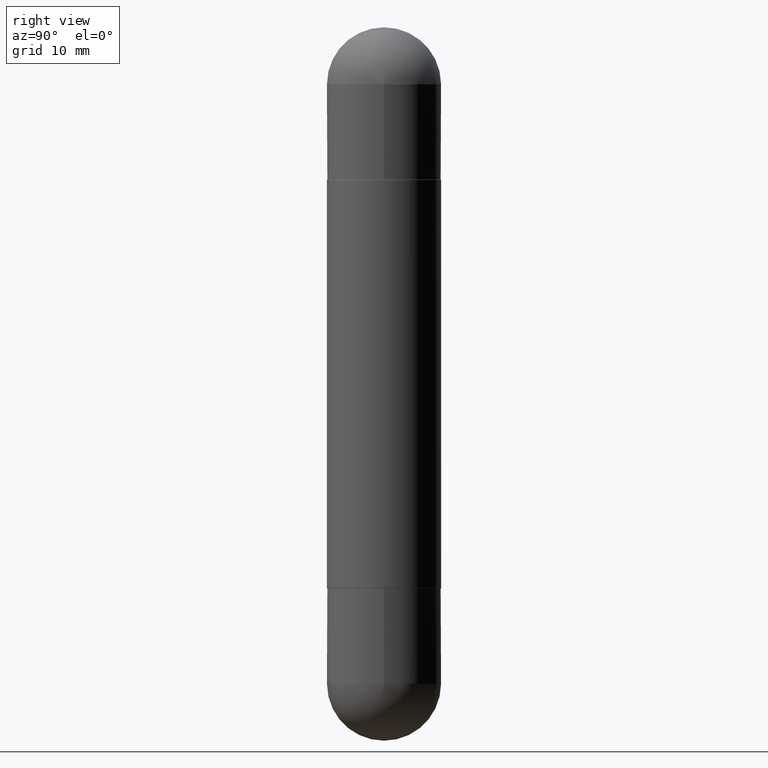
[diagram: clean part render]
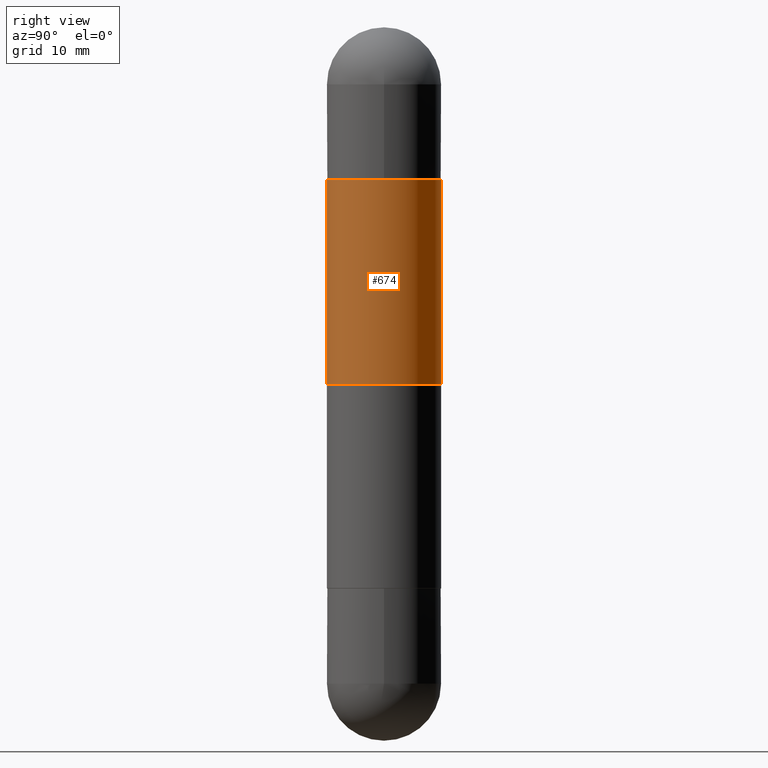
[diagram: same view with one face highlighted and labeled with its STEP entity id]
A machine part, right view. The second image highlights one B-rep face of the part: STEP entity #674.
In plain terms, the highlighted cylindrical surface (partial cylindrical patch) has radius 5.9995 mm, axis along (-0, 0, -1).
Its self-contained STEP definition (entity closure, byte-faithful):
#1 = LINE ( 'NONE', #500, #76 ) ;
#9 = CARTESIAN_POINT ( 'NONE',  ( 1.620449627073636656E-15, 0.2362000000000001598, -2.952799999999998537 ) ) ;
#76 = VECTOR ( 'NONE', #488, 39.37007874015748143 ) ;
#105 = DIRECTION ( 'NONE',  ( -6.982962677686265922E-15, -1.000000000000000000, -3.469747663417773058E-15 ) ) ;
#107 = ORIENTED_EDGE ( 'NONE', *, *, #249, .F. ) ;
#110 = ORIENTED_EDGE ( 'NONE', *, *, #651, .F. ) ;
#130 = CARTESIAN_POINT ( 'NONE',  ( 1.620449627073693454E-15, 0.2361999999999949973, -1.476399999999999935 ) ) ;
#139 = AXIS2_PLACEMENT_3D ( 'NONE', #711, #144, #535 ) ;
#144 = DIRECTION ( 'NONE',  ( -0.000000000000000000, -0.000000000000000000, -1.000000000000000000 ) ) ;
#174 = EDGE_LOOP ( 'NONE', ( #107, #110, #582, #499 ) ) ;
#177 = VERTEX_POINT ( 'NONE', #799 ) ;
#222 = CYLINDRICAL_SURFACE ( 'NONE', #804, 0.2362000000000001598 ) ;
#249 = EDGE_CURVE ( 'NONE', #177, #712, #571, .T. ) ;
#293 = CARTESIAN_POINT ( 'NONE',  ( -1.649375784469450574E-15, -0.2362000000000053224, -1.476399999999999935 ) ) ;
#307 = DIRECTION ( 'NONE',  ( -2.446269011737253396E-29, 3.490335398947642861E-15, -1.000000000000000000 ) ) ;
#318 = CARTESIAN_POINT ( 'NONE',  ( -1.649375784469441108E-15, -0.2362000000000083755, -0.6309000000000009045 ) ) ;
#417 = CARTESIAN_POINT ( 'NONE',  ( 5.679992018352727461E-29, -8.104209762816530877E-15, -0.6309000000000001274 ) ) ;
#488 = DIRECTION ( 'NONE',  ( -2.446269011737253115E-29, 3.490335398947642466E-15, -1.000000000000000000 ) ) ;
#499 = ORIENTED_EDGE ( 'NONE', *, *, #518, .F. ) ;
#500 = CARTESIAN_POINT ( 'NONE',  ( -1.649375784469497117E-15, -0.2362000000000001598, -2.952800000000000757 ) ) ;
#518 = EDGE_CURVE ( 'NONE', #712, #658, #616, .T. ) ;
#535 = DIRECTION ( 'NONE',  ( -1.000000000000000000, 0.000000000000000000, 0.000000000000000000 ) ) ;
#559 = DIRECTION ( 'NONE',  ( -6.982962677686265922E-15, -1.000000000000000000, -4.626330217890366181E-15 ) ) ;
#571 = LINE ( 'NONE', #9, #678 ) ;
#582 = ORIENTED_EDGE ( 'NONE', *, *, #729, .T. ) ;
#616 = CIRCLE ( 'NONE', #139, 0.2362000000000001598 ) ;
#629 = AXIS2_PLACEMENT_3D ( 'NONE', #417, #667, #105 ) ;
#631 = CARTESIAN_POINT ( 'NONE',  ( 0.000000000000000000, 0.000000000000000000, -2.952799999999999869 ) ) ;
#651 = EDGE_CURVE ( 'NONE', #707, #177, #654, .T. ) ;
#654 = CIRCLE ( 'NONE', #629, 0.2362000000000002709 ) ;
#658 = VERTEX_POINT ( 'NONE', #293 ) ;
#667 = DIRECTION ( 'NONE',  ( 2.446269011737253396E-29, -3.490335398947642861E-15, 1.000000000000000000 ) ) ;
#674 = ADVANCED_FACE ( 'NONE', ( #789 ), #222, .T. ) ;
#678 = VECTOR ( 'NONE', #688, 39.37007874015748143 ) ;
#688 = DIRECTION ( 'NONE',  ( -2.446269011737253115E-29, 3.490335398947642466E-15, -1.000000000000000000 ) ) ;
#707 = VERTEX_POINT ( 'NONE', #318 ) ;
#711 = CARTESIAN_POINT ( 'NONE',  ( 3.611671568928880754E-29, -5.153131183006299176E-15, -1.476399999999999935 ) ) ;
#712 = VERTEX_POINT ( 'NONE', #130 ) ;
#729 = EDGE_CURVE ( 'NONE', #707, #658, #1, .T. ) ;
#789 = FACE_OUTER_BOUND ( 'NONE', #174, .T. ) ;
#799 = CARTESIAN_POINT ( 'NONE',  ( 1.620449627073694243E-15, 0.2361999999999921662, -0.6308999999999992392 ) ) ;
#804 = AXIS2_PLACEMENT_3D ( 'NONE', #631, #307, #559 ) ;